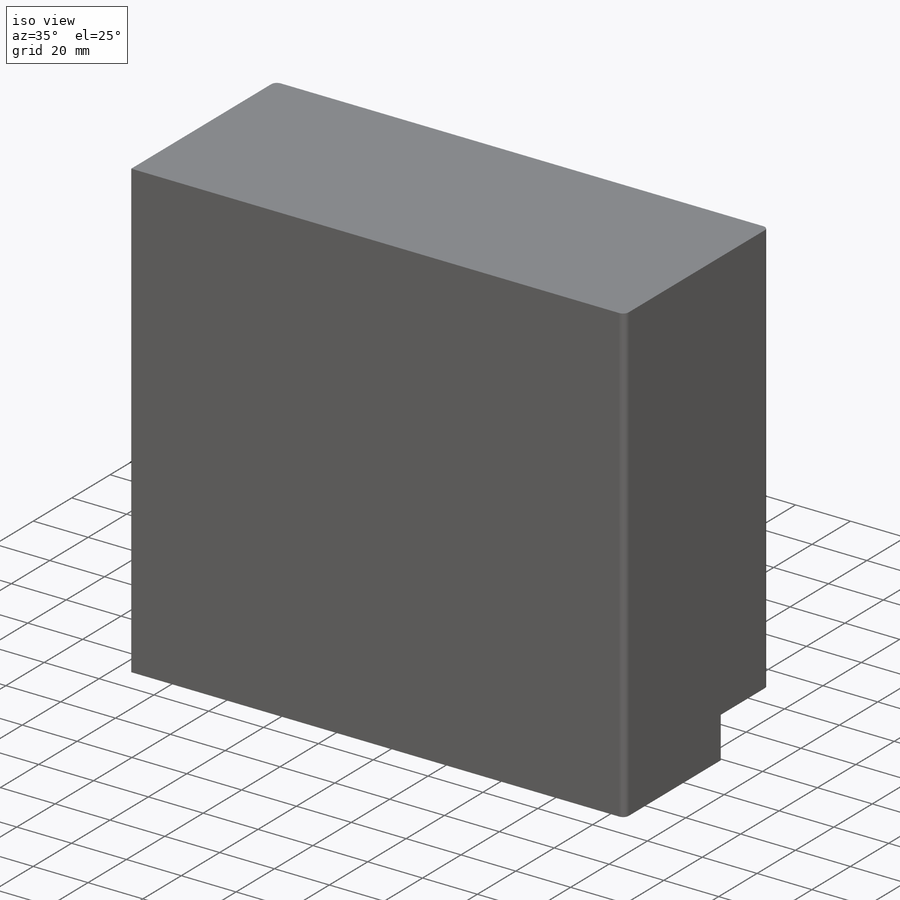
[diagram: iso view]
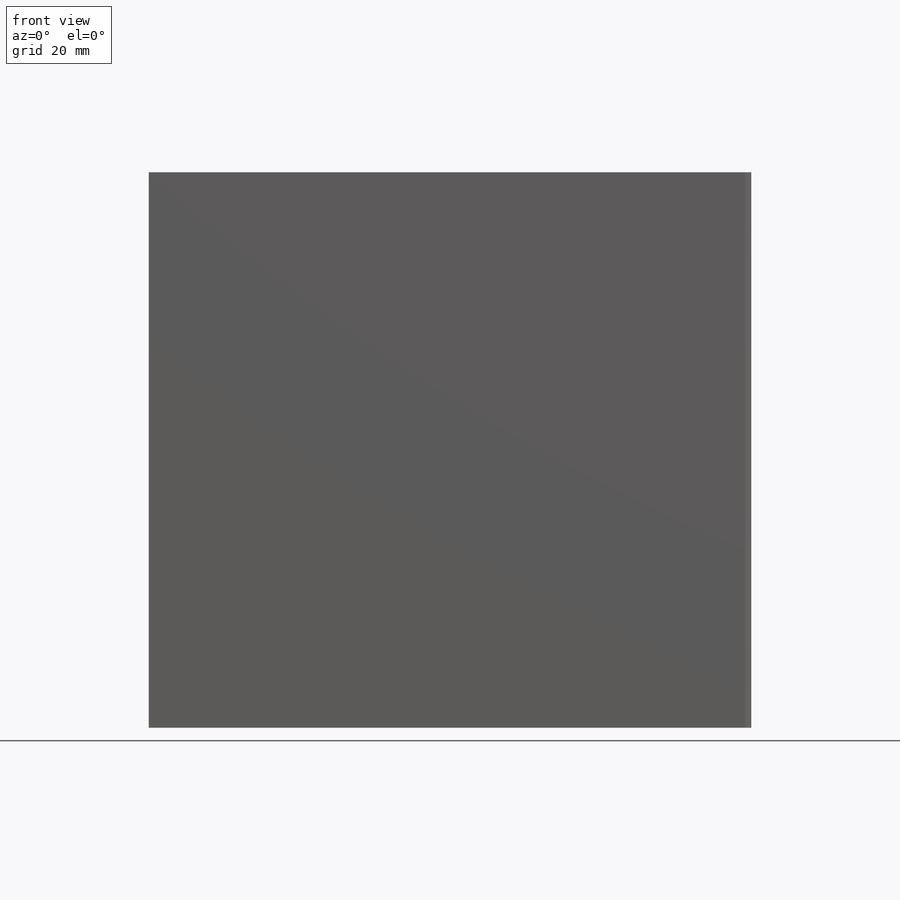
[diagram: front view]
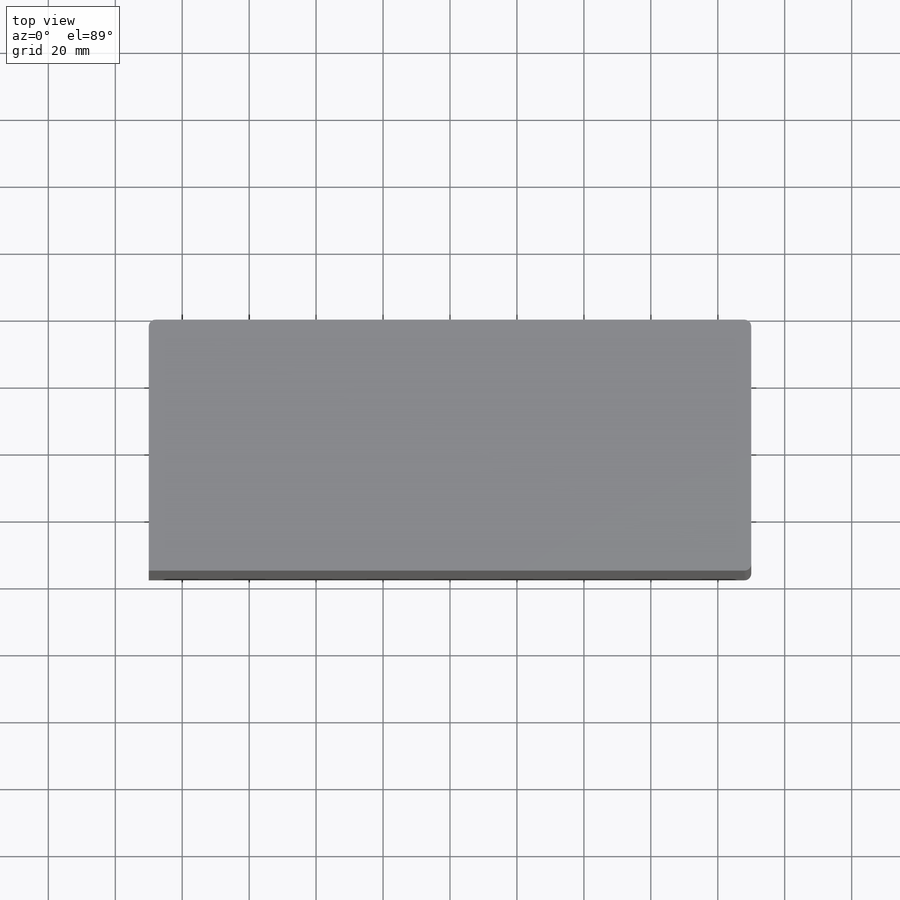
[diagram: top view]
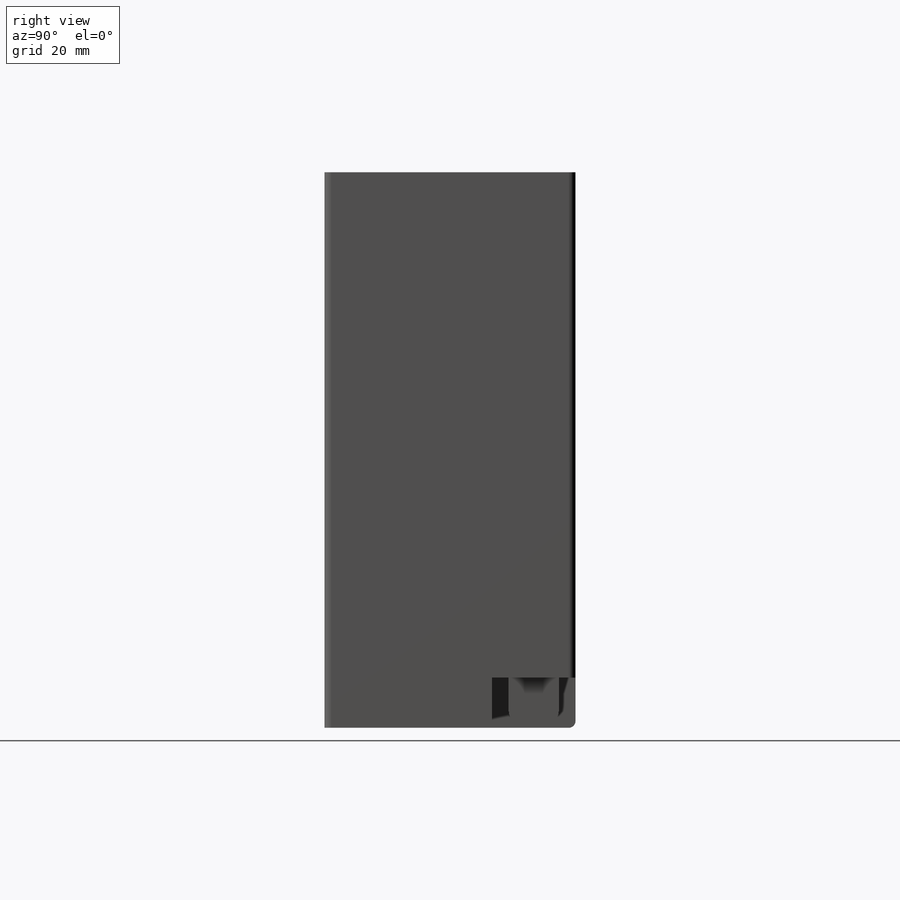
[diagram: right view]
SOLIDWORKS PART (.sldprt)
format: sldprt  version: not decoded by parser v0  size: 215,552 bytes
history: native  units: mm
features: sketch x3, extrude x2, fillet x2, material x1, cut_extrude x1 (+13 scaffold rows collapsed)
feature tree (22):
  scaffold x13  (default folders/planes/origin — collapsed)
  material  "Material <not specified>"
  sketch  "Sketch1"  dims[D1=75.0mm D2=180.0mm]
  extrude  "Boss-Extrude1"  Depth=166mm
  sketch  "Sketch2"  dims[D1=25.0mm D2=50.0mm]
  cut_extrude  "Cut-Extrude1"  Depth=15mm
  fillet  "Fillet1"  Radius=2mm
  sketch  "Sketch3"  dims[D1=5.0mm D2=70.0mm D3=4.0mm D4=15.0mm]
  extrude  "Boss-Extrude2"  Depth=14mm
  fillet  "Fillet2"  Radius=4mm
decode coverage: 8 of 8 modeling features carry decoded parameters
note: suppression state not decoded; provenance and decode notes live in map.json
